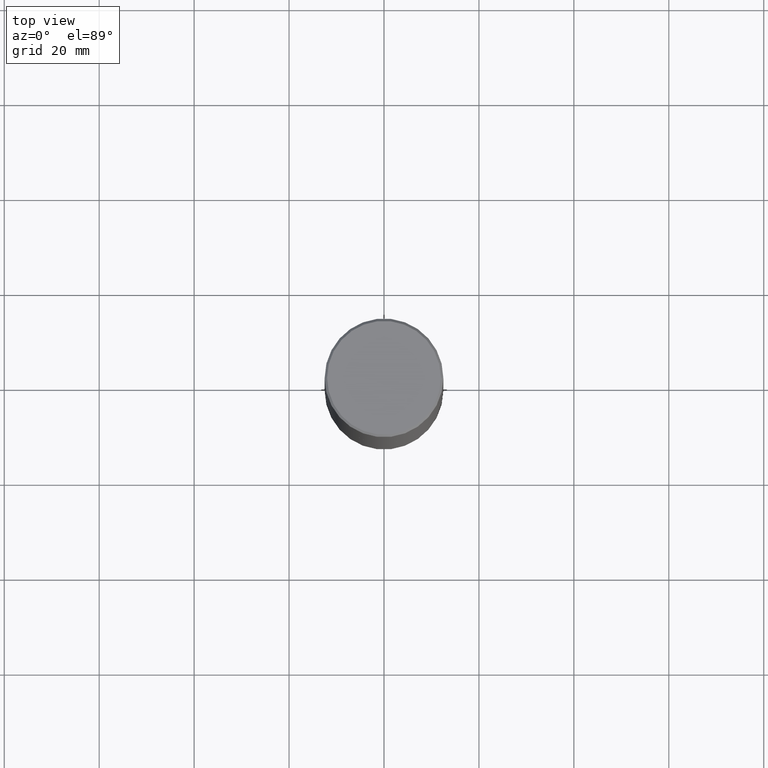
[diagram: clean part render]
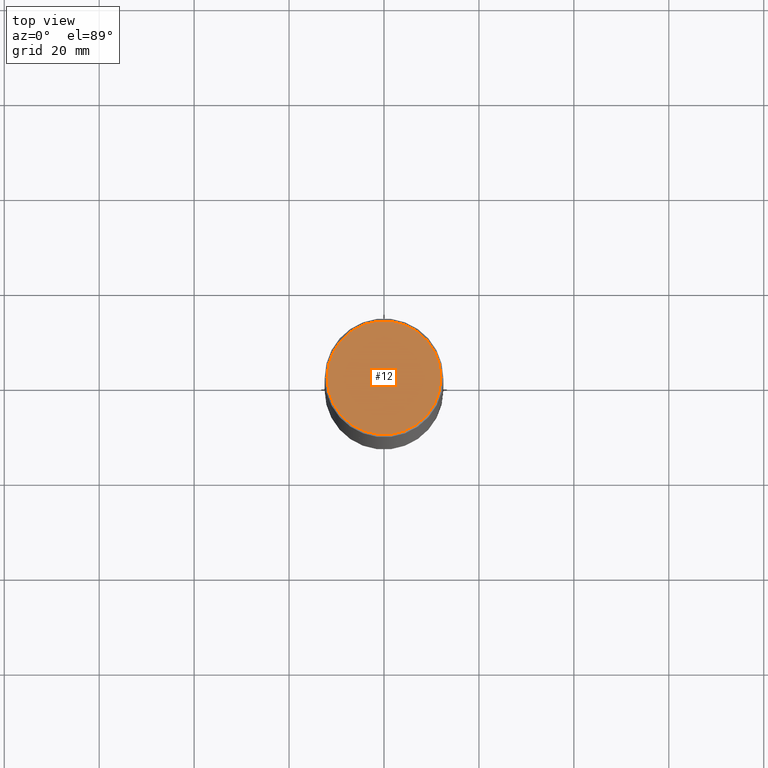
[diagram: same view with one face highlighted and labeled with its STEP entity id]
A machine part, top view. The second image highlights one B-rep face of the part: STEP entity #12.
In plain terms, the highlighted planar face has unit normal (0, -0, -1).
Its self-contained STEP definition (entity closure, byte-faithful):
#9 = AXIS2_PLACEMENT_3D ( 'NONE', #168, #60, #142 ) ;
#12 = ADVANCED_FACE ( 'NONE', ( #296 ), #103, .F. ) ;
#60 = DIRECTION ( 'NONE',  ( -2.445468806185136597E-29, 3.491481338843145583E-15, 1.000000000000000000 ) ) ;
#68 = EDGE_CURVE ( 'NONE', #240, #157, #77, .T. ) ;
#74 = CARTESIAN_POINT ( 'NONE',  ( 3.297005828269567997E-15, 0.4721499999999996255, -1.644234401644689488E-15 ) ) ;
#77 = CIRCLE ( 'NONE', #9, 0.4721499999999996255 ) ;
#91 = ORIENTED_EDGE ( 'NONE', *, *, #68, .T. ) ;
#103 = PLANE ( 'NONE',  #249 ) ;
#137 = DIRECTION ( 'NONE',  ( -1.000000000000000000, 6.982962677686265922E-15, -4.876176775795935793E-29 ) ) ;
#142 = DIRECTION ( 'NONE',  ( 1.000000000000000000, -6.982962677686265922E-15, 4.876006802227162976E-29 ) ) ;
#157 = VERTEX_POINT ( 'NONE', #280 ) ;
#165 = EDGE_LOOP ( 'NONE', ( #91, #299 ) ) ;
#168 = CARTESIAN_POINT ( 'NONE',  ( -2.087702828670439639E-46, 2.980686340760894400E-32, 8.537024980200822558E-18 ) ) ;
#174 = CARTESIAN_POINT ( 'NONE',  ( -0.4721499999999996255, 3.331920641657999252E-15, 8.537024980177643606E-18 ) ) ;
#178 = DIRECTION ( 'NONE',  ( -2.445468806185136597E-29, 3.491481338843145583E-15, 1.000000000000000000 ) ) ;
#187 = DIRECTION ( 'NONE',  ( 2.438088387897960049E-29, -3.491481338843145188E-15, -1.000000000000000000 ) ) ;
#203 = DIRECTION ( 'NONE',  ( 1.000000000000000000, -6.982962677686265922E-15, 4.876006802227162976E-29 ) ) ;
#231 = CARTESIAN_POINT ( 'NONE',  ( -2.087702828670439639E-46, 2.980686340760894400E-32, 8.537024980200822558E-18 ) ) ;
#235 = CIRCLE ( 'NONE', #241, 0.4721499999999996255 ) ;
#240 = VERTEX_POINT ( 'NONE', #174 ) ;
#241 = AXIS2_PLACEMENT_3D ( 'NONE', #231, #178, #203 ) ;
#249 = AXIS2_PLACEMENT_3D ( 'NONE', #74, #187, #137 ) ;
#265 = EDGE_CURVE ( 'NONE', #157, #240, #235, .T. ) ;
#280 = CARTESIAN_POINT ( 'NONE',  ( 0.4721499999999996255, -3.342703923013973396E-15, 8.537024980224040028E-18 ) ) ;
#296 = FACE_OUTER_BOUND ( 'NONE', #165, .T. ) ;
#299 = ORIENTED_EDGE ( 'NONE', *, *, #265, .T. ) ;